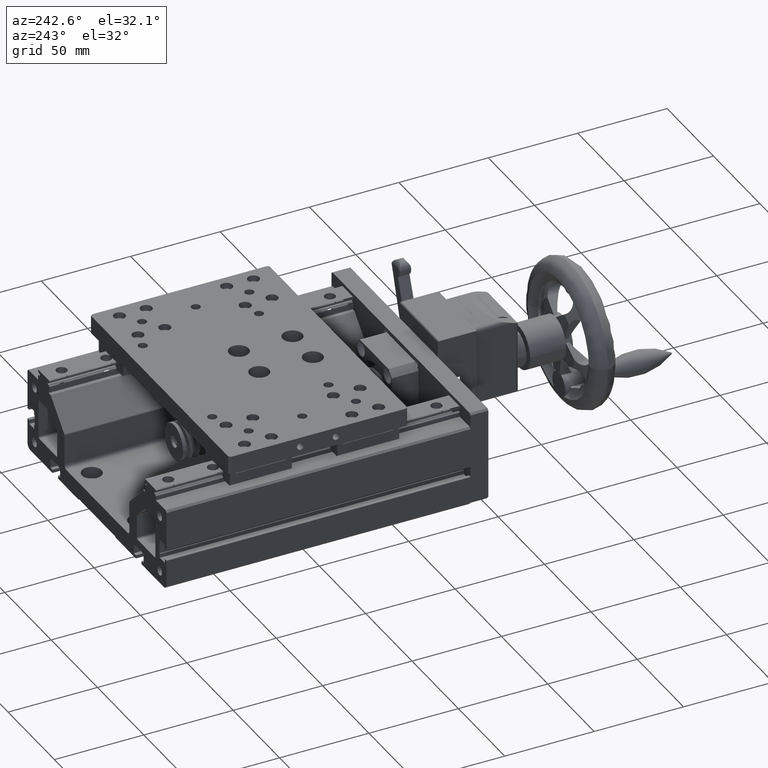
[diagram: clean part render]
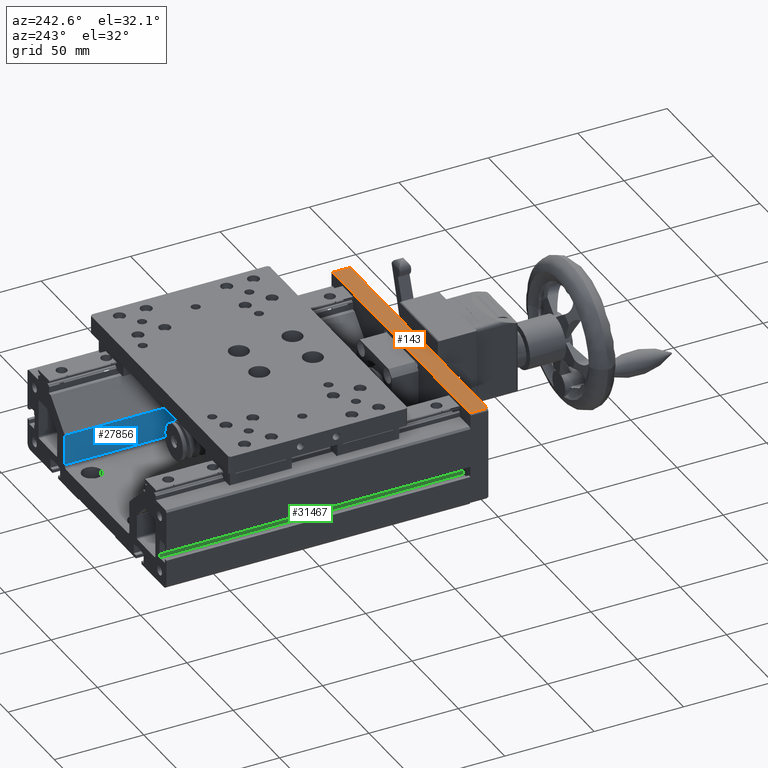
[diagram: same view with three faces highlighted in distinct colors, each labeled with its STEP entity id]
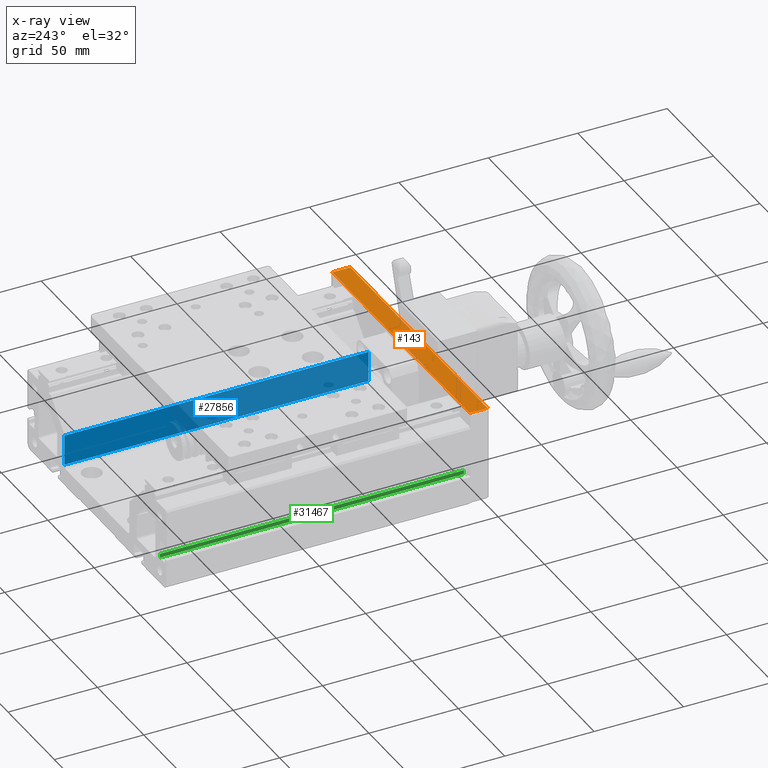
[diagram: x-ray of the same camera — body ghosted, the three highlighted faces saturated]
A machine part, auxiliary view with three faces highlighted in distinct colors.
The next image is the same camera in x-ray (body ghosted, the three faces saturated) — at least one of them is partly hidden behind the body in this view.
Their STEP definitions:

[orange] entity #143 — the highlighted planar face has unit normal (0, -0, -1).
#143 = ADVANCED_FACE ( 'NONE', ( #18705 ), #5741, .F. ) ;
#576 = EDGE_CURVE ( 'NONE', #30772, #18889, #6676, .T. ) ;
#1005 = EDGE_CURVE ( 'NONE', #18889, #11665, #14180, .T. ) ;
#2632 = DIRECTION ( 'NONE',  ( -4.282904442465670179E-15, -1.000000000000000000, 4.205762191327117395E-16 ) ) ;
#4684 = EDGE_CURVE ( 'NONE', #27138, #11665, #29971, .T. ) ;
#5741 = PLANE ( 'NONE',  #14434 ) ;
#6676 = LINE ( 'NONE', #13726, #32333 ) ;
#6892 = LINE ( 'NONE', #9165, #25159 ) ;
#8038 = DIRECTION ( 'NONE',  ( -1.000000000000000000, 4.183339140829129108E-15, -3.979699452865754945E-14 ) ) ;
#8518 = CARTESIAN_POINT ( 'NONE',  ( 46.17352052019641206, -83.04726459791102400, 31.00000000000413536 ) ) ;
#9165 = CARTESIAN_POINT ( 'NONE',  ( 46.17352052019641206, -83.04726459791102400, 31.00000000000413536 ) ) ;
#10961 = ORIENTED_EDGE ( 'NONE', *, *, #4684, .F. ) ;
#11583 = ORIENTED_EDGE ( 'NONE', *, *, #1005, .T. ) ;
#11665 = VERTEX_POINT ( 'NONE', #15354 ) ;
#13726 = CARTESIAN_POINT ( 'NONE',  ( -101.8264794798025292, -83.04726459791041293, 30.99999999999880629 ) ) ;
#14180 = LINE ( 'NONE', #21104, #28554 ) ;
#14434 = AXIS2_PLACEMENT_3D ( 'NONE', #28774, #26305, #8038 ) ;
#15354 = CARTESIAN_POINT ( 'NONE',  ( 46.17352052019638364, -93.04726459791102400, 31.00000000000413536 ) ) ;
#18705 = FACE_OUTER_BOUND ( 'NONE', #19767, .T. ) ;
#18844 = DIRECTION ( 'NONE',  ( -4.282904442465670179E-15, -1.000000000000000000, 4.205762191327117395E-16 ) ) ;
#18889 = VERTEX_POINT ( 'NONE', #20542 ) ;
#19767 = EDGE_LOOP ( 'NONE', ( #11583, #10961, #26968, #28732 ) ) ;
#20542 = CARTESIAN_POINT ( 'NONE',  ( -101.8264794798025719, -93.04726459791041293, 30.99999999999880629 ) ) ;
#21104 = CARTESIAN_POINT ( 'NONE',  ( 46.17352052019638364, -93.04726459791102400, 31.00000000000413536 ) ) ;
#24660 = DIRECTION ( 'NONE',  ( 1.000000000000000000, -4.183339140829129108E-15, 3.979699452865754945E-14 ) ) ;
#25041 = CARTESIAN_POINT ( 'NONE',  ( 46.17352052019641206, -83.04726459791102400, 31.00000000000413536 ) ) ;
#25159 = VECTOR ( 'NONE', #24660, 1000.000000000000000 ) ;
#26305 = DIRECTION ( 'NONE',  ( 3.979699452865754945E-14, -2.785001101983111703E-16, -1.000000000000000000 ) ) ;
#26968 = ORIENTED_EDGE ( 'NONE', *, *, #27354, .F. ) ;
#27138 = VERTEX_POINT ( 'NONE', #8518 ) ;
#27354 = EDGE_CURVE ( 'NONE', #30772, #27138, #6892, .T. ) ;
#28554 = VECTOR ( 'NONE', #31616, 1000.000000000000000 ) ;
#28718 = CARTESIAN_POINT ( 'NONE',  ( -101.8264794798025292, -83.04726459791041293, 30.99999999999880629 ) ) ;
#28732 = ORIENTED_EDGE ( 'NONE', *, *, #576, .T. ) ;
#28774 = CARTESIAN_POINT ( 'NONE',  ( 46.17352052019641206, -83.04726459791102400, 31.00000000000413536 ) ) ;
#29971 = LINE ( 'NONE', #25041, #30942 ) ;
#30772 = VERTEX_POINT ( 'NONE', #28718 ) ;
#30942 = VECTOR ( 'NONE', #2632, 1000.000000000000000 ) ;
#31616 = DIRECTION ( 'NONE',  ( 1.000000000000000000, -4.183339140829129108E-15, 3.979699452865754945E-14 ) ) ;
#32333 = VECTOR ( 'NONE', #18844, 1000.000000000000000 ) ;

[blue] entity #27856 — the highlighted planar face has unit normal (-1, 0, -0).
#75 = CARTESIAN_POINT ( 'NONE',  ( 7.173520520199705430, 86.95273540209107921, 6.085786437626694578 ) ) ;
#78 = CARTESIAN_POINT ( 'NONE',  ( 7.173520520199150319, -83.04726459790892079, 6.085786437626694578 ) ) ;
#102 = CARTESIAN_POINT ( 'NONE',  ( 7.173520520199538453, -83.04726459790892079, -11.00000000000100897 ) ) ;
#1648 = VERTEX_POINT ( 'NONE', #11771 ) ;
#2219 = LINE ( 'NONE', #78, #4323 ) ;
#2890 = CARTESIAN_POINT ( 'NONE',  ( 7.173520520200149519, 86.95273540209107921, -11.00000000000100897 ) ) ;
#3307 = CARTESIAN_POINT ( 'NONE',  ( 7.173520520199150319, -83.04726459790892079, 6.085786437626694578 ) ) ;
#4323 = VECTOR ( 'NONE', #10112, 1000.000000000000000 ) ;
#4387 = CARTESIAN_POINT ( 'NONE',  ( 7.173520520199094364, -83.04726459790892079, 6.085786437626694578 ) ) ;
#5220 = DIRECTION ( 'NONE',  ( -1.000000000000000000, 3.491481338843133355E-15, -2.250025228554850121E-14 ) ) ;
#7009 = DIRECTION ( 'NONE',  ( 3.491481338843133355E-15, 1.000000000000000000, -3.657132581846951845E-29 ) ) ;
#7176 = LINE ( 'NONE', #4387, #25026 ) ;
#10112 = DIRECTION ( 'NONE',  ( -2.250025228554850436E-14, 1.151305367927246954E-28, 1.000000000000000000 ) ) ;
#11771 = CARTESIAN_POINT ( 'NONE',  ( 7.173520520199094364, -83.04726459790892079, 6.085786437626694578 ) ) ;
#12447 = ORIENTED_EDGE ( 'NONE', *, *, #16009, .F. ) ;
#13045 = ORIENTED_EDGE ( 'NONE', *, *, #24691, .T. ) ;
#14149 = CARTESIAN_POINT ( 'NONE',  ( 7.173520520199760497, 86.95273540209107921, 6.085786437626694578 ) ) ;
#14451 = CARTESIAN_POINT ( 'NONE',  ( 7.173520520199538453, -83.04726459790892079, -11.00000000000100897 ) ) ;
#14766 = LINE ( 'NONE', #102, #25461 ) ;
#16009 = EDGE_CURVE ( 'NONE', #25977, #29025, #14766, .T. ) ;
#17510 = PLANE ( 'NONE',  #24142 ) ;
#22419 = ORIENTED_EDGE ( 'NONE', *, *, #30455, .T. ) ;
#22533 = EDGE_CURVE ( 'NONE', #29025, #32524, #29615, .T. ) ;
#23539 = VECTOR ( 'NONE', #26356, 1000.000000000000000 ) ;
#24142 = AXIS2_PLACEMENT_3D ( 'NONE', #3307, #5220, #27591 ) ;
#24691 = EDGE_CURVE ( 'NONE', #25977, #1648, #2219, .T. ) ;
#24811 = DIRECTION ( 'NONE',  ( 3.491481338843133355E-15, 1.000000000000000000, -3.657132581846951845E-29 ) ) ;
#25026 = VECTOR ( 'NONE', #7009, 1000.000000000000000 ) ;
#25461 = VECTOR ( 'NONE', #24811, 1000.000000000000000 ) ;
#25977 = VERTEX_POINT ( 'NONE', #14451 ) ;
#26356 = DIRECTION ( 'NONE',  ( -2.250025228554850436E-14, 1.151305367927246954E-28, 1.000000000000000000 ) ) ;
#26794 = EDGE_LOOP ( 'NONE', ( #27684, #12447, #13045, #22419 ) ) ;
#27591 = DIRECTION ( 'NONE',  ( -2.250025228554850121E-14, 1.151305367927246954E-28, 1.000000000000000000 ) ) ;
#27684 = ORIENTED_EDGE ( 'NONE', *, *, #22533, .F. ) ;
#27856 = ADVANCED_FACE ( 'NONE', ( #32510 ), #17510, .T. ) ;
#29025 = VERTEX_POINT ( 'NONE', #2890 ) ;
#29615 = LINE ( 'NONE', #14149, #23539 ) ;
#30455 = EDGE_CURVE ( 'NONE', #1648, #32524, #7176, .T. ) ;
#32510 = FACE_OUTER_BOUND ( 'NONE', #26794, .T. ) ;
#32524 = VERTEX_POINT ( 'NONE', #75 ) ;

[green] entity #31467 — the highlighted planar face has unit normal (-1, 0, 0).
#169 = EDGE_CURVE ( 'NONE', #18097, #29205, #28604, .T. ) ;
#340 = AXIS2_PLACEMENT_3D ( 'NONE', #1919, #2242, #31697 ) ;
#849 = LINE ( 'NONE', #18610, #2547 ) ;
#1074 = LINE ( 'NONE', #15879, #31374 ) ;
#1664 = VECTOR ( 'NONE', #22043, 1000.000000000000000 ) ;
#1919 = CARTESIAN_POINT ( 'NONE',  ( -95.62647947979974106, -83.04726459790856552, -8.250000000000312639 ) ) ;
#2242 = DIRECTION ( 'NONE',  ( -1.000000000000000000, 3.491481338843133355E-15, 3.491481338843133355E-15 ) ) ;
#2532 = EDGE_LOOP ( 'NONE', ( #26521, #16012, #14136, #13674 ) ) ;
#2547 = VECTOR ( 'NONE', #10880, 1000.000000000000000 ) ;
#4318 = EDGE_CURVE ( 'NONE', #12018, #18097, #849, .T. ) ;
#6053 = DIRECTION ( 'NONE',  ( 3.491481338843133355E-15, 1.000000000000000000, -3.657132581846951845E-29 ) ) ;
#6585 = VECTOR ( 'NONE', #6053, 1000.000000000000000 ) ;
#8323 = CARTESIAN_POINT ( 'NONE',  ( -95.62647947979912999, 86.95273540209143448, -6.000000000000227374 ) ) ;
#10647 = CARTESIAN_POINT ( 'NONE',  ( -95.62647947979974106, -83.04726459790856552, -6.000000000000227374 ) ) ;
#10880 = DIRECTION ( 'NONE',  ( 3.491481338843133750E-15, 2.438088387897968177E-29, 1.000000000000000000 ) ) ;
#11830 = CARTESIAN_POINT ( 'NONE',  ( -95.62647947979912999, 86.95273540209143448, -8.250000000000312639 ) ) ;
#12018 = VERTEX_POINT ( 'NONE', #15904 ) ;
#13674 = ORIENTED_EDGE ( 'NONE', *, *, #169, .T. ) ;
#14136 = ORIENTED_EDGE ( 'NONE', *, *, #4318, .T. ) ;
#15879 = CARTESIAN_POINT ( 'NONE',  ( -95.62647947979912999, 86.95273540209143448, -8.250000000000312639 ) ) ;
#15904 = CARTESIAN_POINT ( 'NONE',  ( -95.62647947979974106, -83.04726459790856552, -8.250000000000312639 ) ) ;
#16012 = ORIENTED_EDGE ( 'NONE', *, *, #23844, .F. ) ;
#16863 = VERTEX_POINT ( 'NONE', #11830 ) ;
#18097 = VERTEX_POINT ( 'NONE', #22855 ) ;
#18610 = CARTESIAN_POINT ( 'NONE',  ( -95.62647947979974106, -83.04726459790856552, -8.250000000000312639 ) ) ;
#21687 = FACE_OUTER_BOUND ( 'NONE', #2532, .T. ) ;
#22043 = DIRECTION ( 'NONE',  ( 3.491481338843133355E-15, 1.000000000000000000, -3.657132581846951845E-29 ) ) ;
#22201 = CARTESIAN_POINT ( 'NONE',  ( -95.62647947979974106, -83.04726459790856552, -8.250000000000312639 ) ) ;
#22855 = CARTESIAN_POINT ( 'NONE',  ( -95.62647947979974106, -83.04726459790856552, -6.000000000000227374 ) ) ;
#23844 = EDGE_CURVE ( 'NONE', #12018, #16863, #31712, .T. ) ;
#26108 = DIRECTION ( 'NONE',  ( 3.491481338843133750E-15, 2.438088387897968177E-29, 1.000000000000000000 ) ) ;
#26521 = ORIENTED_EDGE ( 'NONE', *, *, #31591, .F. ) ;
#28604 = LINE ( 'NONE', #10647, #6585 ) ;
#29205 = VERTEX_POINT ( 'NONE', #8323 ) ;
#31374 = VECTOR ( 'NONE', #26108, 1000.000000000000000 ) ;
#31467 = ADVANCED_FACE ( 'NONE', ( #21687 ), #32370, .T. ) ;
#31591 = EDGE_CURVE ( 'NONE', #16863, #29205, #1074, .T. ) ;
#31697 = DIRECTION ( 'NONE',  ( -3.491481338843133355E-15, -1.000000000000000000, 3.657132581846951845E-29 ) ) ;
#31712 = LINE ( 'NONE', #22201, #1664 ) ;
#32370 = PLANE ( 'NONE',  #340 ) ;